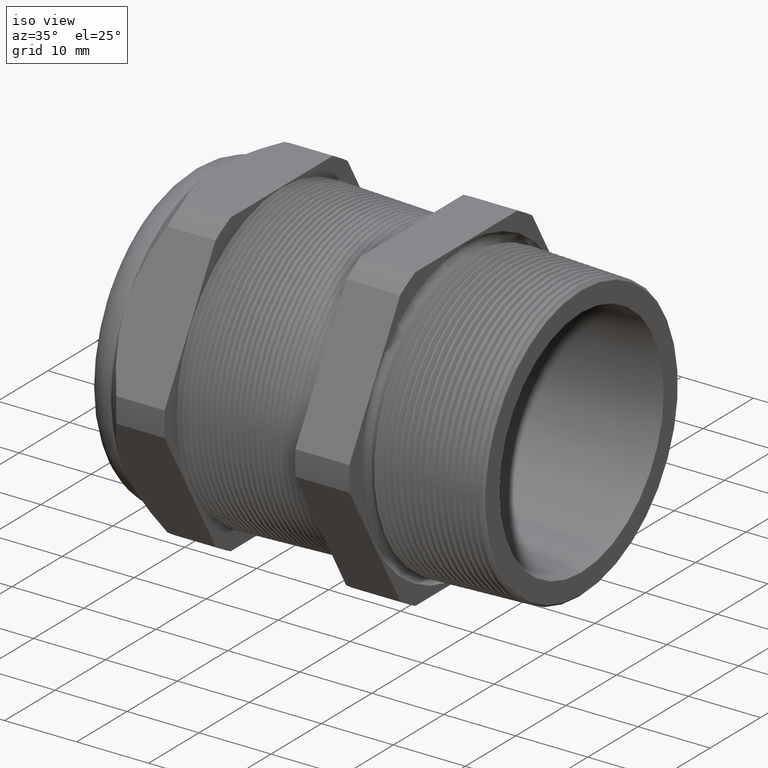
[diagram: clean part render]
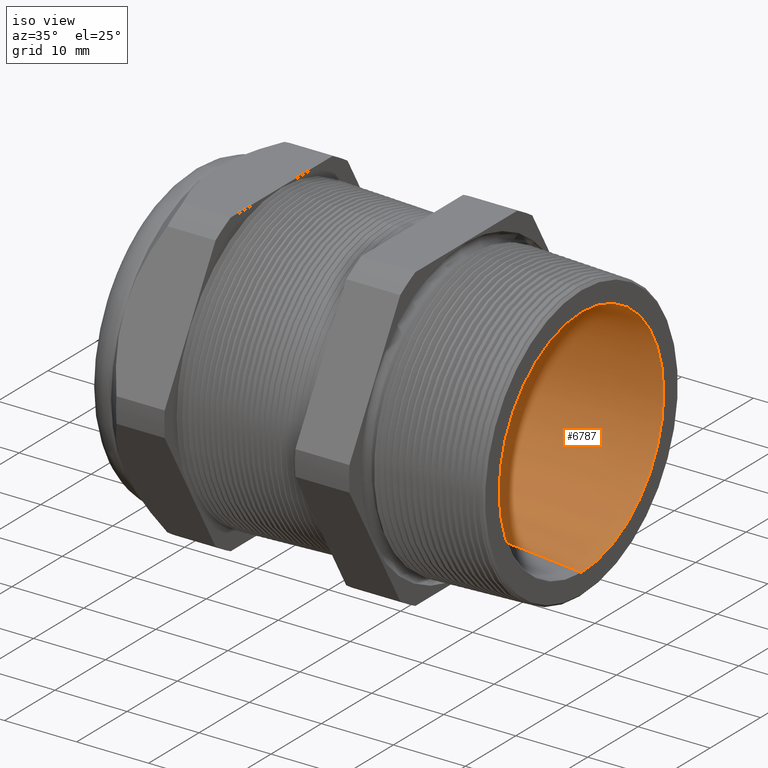
[diagram: same view with one face highlighted and labeled with its STEP entity id]
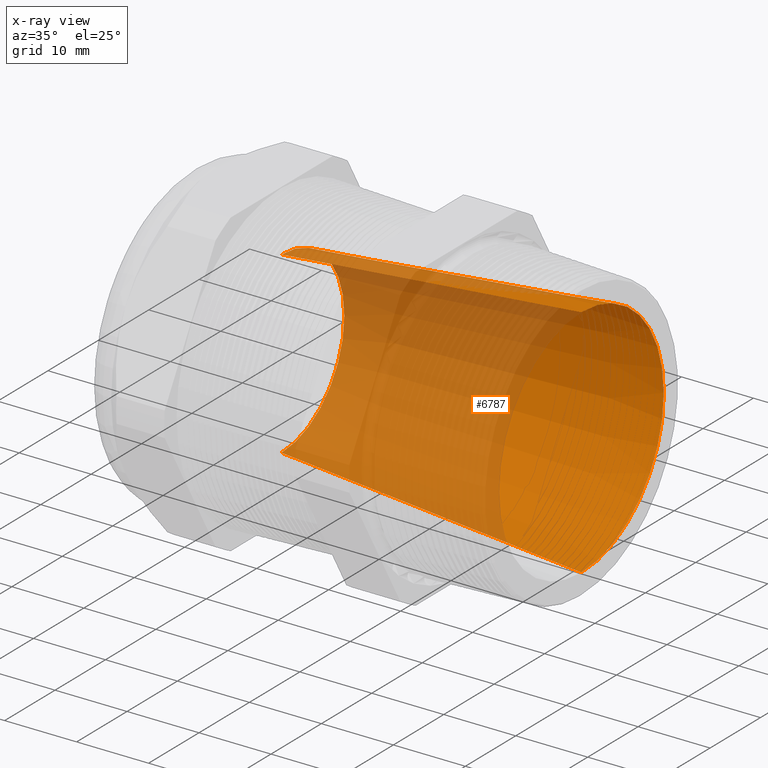
[diagram: x-ray of the same camera — body ghosted, the highlighted face saturated]
A machine part, iso view. The second image highlights one B-rep face of the part: STEP entity #6787.
The next image is the same camera in x-ray: the body ghosted, the highlighted face saturated — about 58% of this face is hidden behind the body in this view.
In plain terms, the highlighted conical surface has half-angle 5.319 deg.
Its self-contained STEP definition (entity closure, byte-faithful):
#1694 = CARTESIAN_POINT ( 'NONE',  ( 0.3200000000000000100, 0.0000000000000000000, -0.6427189393659892300 ) ) ;
#1700 = CARTESIAN_POINT ( 'NONE',  ( 0.3200000000000000100, 7.871036918459403200E-017, 0.6427189393659892300 ) ) ;
#1701 = DIRECTION ( 'NONE',  ( 0.9956938511525023100, 1.135278282922340900E-017, 0.09270250685444700300 ) ) ;
#1702 = VECTOR ( 'NONE', #1701, 39.37007874015748100 ) ;
#1703 = CARTESIAN_POINT ( 'NONE',  ( -1.320314960629921600, 6.000769315822029800E-017, 0.4899999999999999900 ) ) ;
#1704 = LINE ( 'NONE', #1703, #1702 ) ;
#1705 = CARTESIAN_POINT ( 'NONE',  ( -1.320314960629921600, 0.0000000000000000000, -0.4899999999999999900 ) ) ;
#1706 = CARTESIAN_POINT ( 'NONE',  ( -1.320314960629921600, 6.000769315822029800E-017, 0.4899999999999999900 ) ) ;
#1787 = LINE ( 'NONE', #1843, #1842 ) ;
#1841 = DIRECTION ( 'NONE',  ( 0.9956938511525023100, 0.0000000000000000000, -0.09270250685444700300 ) ) ;
#1842 = VECTOR ( 'NONE', #1841, 39.37007874015748100 ) ;
#1843 = CARTESIAN_POINT ( 'NONE',  ( -1.320314960629921600, 0.0000000000000000000, -0.4899999999999999900 ) ) ;
#3466 = CONICAL_SURFACE ( 'NONE', #3467, 0.4899999999999999900, 0.09283580007258573900 ) ;
#3467 = AXIS2_PLACEMENT_3D ( 'NONE', #3526, #3525, #3524 ) ;
#3468 = FACE_OUTER_BOUND ( 'NONE', #6788, .T. ) ;
#3469 = DIRECTION ( 'NONE',  ( 0.0000000000000000000, 0.0000000000000000000, -1.000000000000000000 ) ) ;
#3470 = DIRECTION ( 'NONE',  ( 1.000000000000000000, 0.0000000000000000000, 0.0000000000000000000 ) ) ;
#3471 = CARTESIAN_POINT ( 'NONE',  ( -1.320314960629921600, 0.0000000000000000000, 0.0000000000000000000 ) ) ;
#3472 = AXIS2_PLACEMENT_3D ( 'NONE', #3471, #3470, #3469 ) ;
#3477 = CIRCLE ( 'NONE', #3472, 0.4899999999999999900 ) ;
#3524 = DIRECTION ( 'NONE',  ( 0.0000000000000000000, 0.0000000000000000000, -1.000000000000000000 ) ) ;
#3525 = DIRECTION ( 'NONE',  ( 1.000000000000000000, 0.0000000000000000000, 0.0000000000000000000 ) ) ;
#3526 = CARTESIAN_POINT ( 'NONE',  ( -1.320314960629921600, 0.0000000000000000000, 0.0000000000000000000 ) ) ;
#3613 = DIRECTION ( 'NONE',  ( 0.0000000000000000000, 0.0000000000000000000, -1.000000000000000000 ) ) ;
#3614 = DIRECTION ( 'NONE',  ( 1.000000000000000000, 0.0000000000000000000, 0.0000000000000000000 ) ) ;
#3615 = CARTESIAN_POINT ( 'NONE',  ( 0.3200000000000000100, 0.0000000000000000000, 0.0000000000000000000 ) ) ;
#3616 = AXIS2_PLACEMENT_3D ( 'NONE', #3615, #3614, #3613 ) ;
#3617 = CIRCLE ( 'NONE', #3616, 0.6427189393659892300 ) ;
#5869 = VERTEX_POINT ( 'NONE', #1706 ) ;
#5870 = VERTEX_POINT ( 'NONE', #1705 ) ;
#5872 = EDGE_CURVE ( 'NONE', #5869, #5873, #1704, .T. ) ;
#5873 = VERTEX_POINT ( 'NONE', #1700 ) ;
#5876 = VERTEX_POINT ( 'NONE', #1694 ) ;
#5934 = EDGE_CURVE ( 'NONE', #5870, #5876, #1787, .T. ) ;
#6786 = EDGE_CURVE ( 'NONE', #5870, #5869, #3477, .T. ) ;
#6787 = ADVANCED_FACE ( 'NONE', ( #3468 ), #3466, .F. ) ;
#6788 = EDGE_LOOP ( 'NONE', ( #6789, #6790, #6791, #6849 ) ) ;
#6789 = ORIENTED_EDGE ( 'NONE', *, *, #5872, .F. ) ;
#6790 = ORIENTED_EDGE ( 'NONE', *, *, #6786, .F. ) ;
#6791 = ORIENTED_EDGE ( 'NONE', *, *, #5934, .T. ) ;
#6849 = ORIENTED_EDGE ( 'NONE', *, *, #6850, .T. ) ;
#6850 = EDGE_CURVE ( 'NONE', #5876, #5873, #3617, .T. ) ;